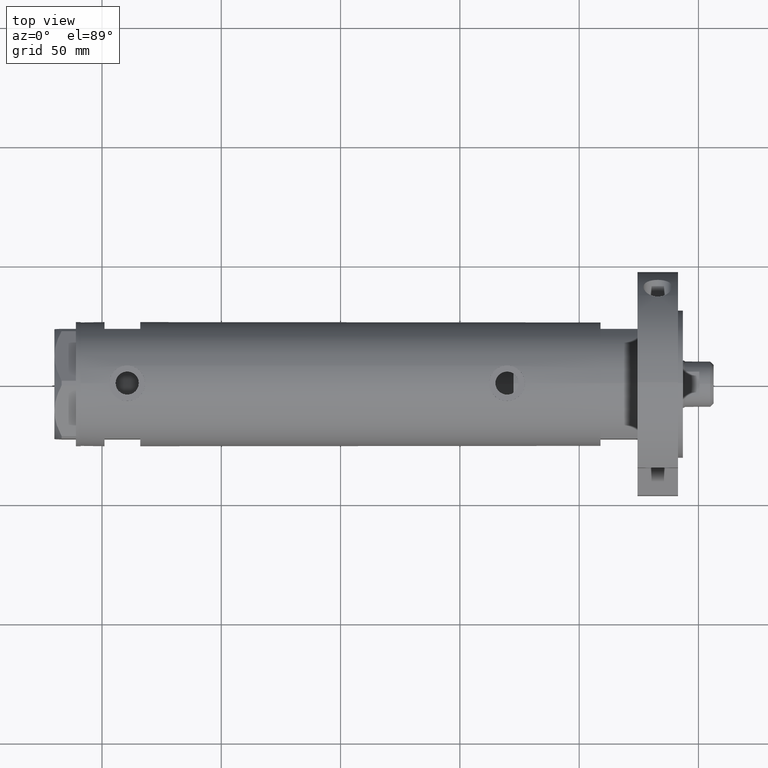
[diagram: clean part render]
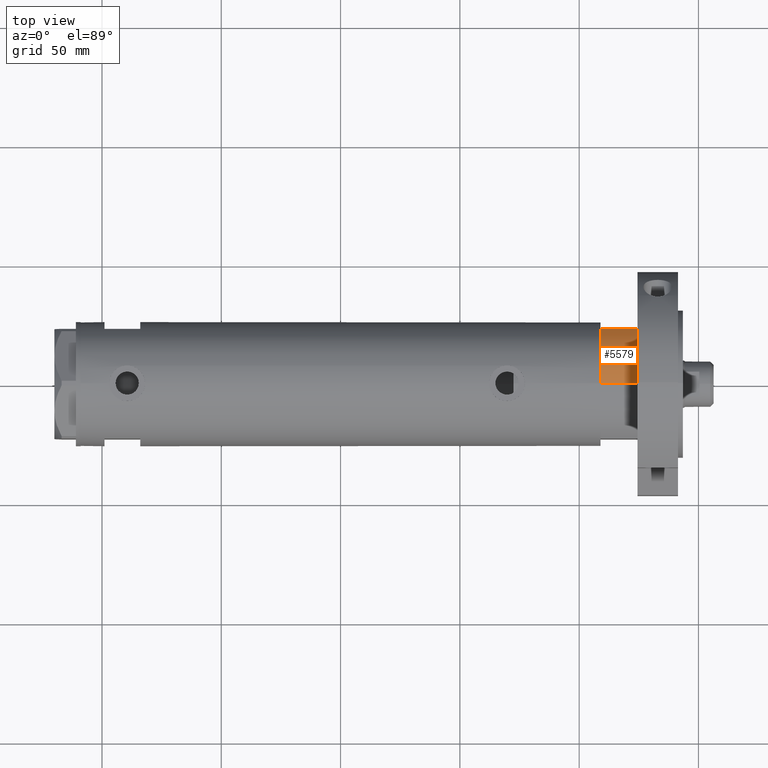
[diagram: same view with one face highlighted and labeled with its STEP entity id]
A machine part, top view. The second image highlights one B-rep face of the part: STEP entity #5579.
In plain terms, the highlighted cylindrical surface (partial cylindrical patch) has radius 26 mm, axis along (-1, -0, 0).
Its self-contained STEP definition (entity closure, byte-faithful):
#186 = AXIS2_PLACEMENT_3D ( 'NONE', #5454, #578, #5582 ) ;
#332 = LINE ( 'NONE', #3901, #6192 ) ;
#340 = DIRECTION ( 'NONE',  ( -0.000000000000000000, -0.000000000000000000, -1.000000000000000000 ) ) ;
#569 = LINE ( 'NONE', #6031, #2471 ) ;
#578 = DIRECTION ( 'NONE',  ( 0.000000000000000000, 0.000000000000000000, 1.000000000000000000 ) ) ;
#618 = VERTEX_POINT ( 'NONE', #2961 ) ;
#937 = EDGE_CURVE ( 'NONE', #4265, #3163, #332, .T. ) ;
#1141 = CIRCLE ( 'NONE', #1669, 26.00000000000000355 ) ;
#1312 = EDGE_LOOP ( 'NONE', ( #6304, #3309, #5569, #3324 ) ) ;
#1444 = DIRECTION ( 'NONE',  ( -0.000000000000000000, -0.000000000000000000, 1.000000000000000000 ) ) ;
#1469 = AXIS2_PLACEMENT_3D ( 'NONE', #2424, #340, #4420 ) ;
#1619 = DIRECTION ( 'NONE',  ( 0.000000000000000000, 0.000000000000000000, 1.000000000000000000 ) ) ;
#1669 = AXIS2_PLACEMENT_3D ( 'NONE', #2225, #1619, #4705 ) ;
#1924 = VERTEX_POINT ( 'NONE', #3051 ) ;
#2225 = CARTESIAN_POINT ( 'NONE',  ( 0.000000000000000000, 0.000000000000000000, 0.000000000000000000 ) ) ;
#2365 = EDGE_CURVE ( 'NONE', #1924, #618, #569, .T. ) ;
#2424 = CARTESIAN_POINT ( 'NONE',  ( 0.000000000000000000, 0.000000000000000000, 15.50000000000000000 ) ) ;
#2471 = VECTOR ( 'NONE', #1444, 1000.000000000000000 ) ;
#2720 = CIRCLE ( 'NONE', #186, 26.00000000000000355 ) ;
#2865 = FACE_OUTER_BOUND ( 'NONE', #1312, .T. ) ;
#2961 = CARTESIAN_POINT ( 'NONE',  ( -12.12435565298214613, 23.00000000000000355, 15.50000000000000000 ) ) ;
#3051 = CARTESIAN_POINT ( 'NONE',  ( -12.12435565298215145, 23.00000000000000355, 0.000000000000000000 ) ) ;
#3163 = VERTEX_POINT ( 'NONE', #3756 ) ;
#3309 = ORIENTED_EDGE ( 'NONE', *, *, #4688, .F. ) ;
#3324 = ORIENTED_EDGE ( 'NONE', *, *, #5170, .T. ) ;
#3606 = CARTESIAN_POINT ( 'NONE',  ( -26.00000000000000355, 0.000000000000000000, 15.50000000000000000 ) ) ;
#3756 = CARTESIAN_POINT ( 'NONE',  ( -26.00000000000000355, 0.000000000000000000, 0.000000000000000000 ) ) ;
#3901 = CARTESIAN_POINT ( 'NONE',  ( -26.00000000000000355, 0.000000000000000000, 15.50000000000000000 ) ) ;
#4265 = VERTEX_POINT ( 'NONE', #3606 ) ;
#4420 = DIRECTION ( 'NONE',  ( -1.000000000000000000, 0.000000000000000000, 0.000000000000000000 ) ) ;
#4688 = EDGE_CURVE ( 'NONE', #618, #4265, #2720, .T. ) ;
#4705 = DIRECTION ( 'NONE',  ( 1.000000000000000000, 0.000000000000000000, 0.000000000000000000 ) ) ;
#4838 = DIRECTION ( 'NONE',  ( -0.000000000000000000, -0.000000000000000000, -1.000000000000000000 ) ) ;
#5170 = EDGE_CURVE ( 'NONE', #1924, #3163, #1141, .T. ) ;
#5403 = CYLINDRICAL_SURFACE ( 'NONE', #1469, 26.00000000000000355 ) ;
#5454 = CARTESIAN_POINT ( 'NONE',  ( 0.000000000000000000, 0.000000000000000000, 15.50000000000000000 ) ) ;
#5569 = ORIENTED_EDGE ( 'NONE', *, *, #2365, .F. ) ;
#5579 = ADVANCED_FACE ( 'NONE', ( #2865 ), #5403, .T. ) ;
#5582 = DIRECTION ( 'NONE',  ( 1.000000000000000000, 0.000000000000000000, 0.000000000000000000 ) ) ;
#6031 = CARTESIAN_POINT ( 'NONE',  ( -12.12435565298215145, 23.00000000000000355, 0.000000000000000000 ) ) ;
#6192 = VECTOR ( 'NONE', #4838, 1000.000000000000000 ) ;
#6304 = ORIENTED_EDGE ( 'NONE', *, *, #937, .F. ) ;